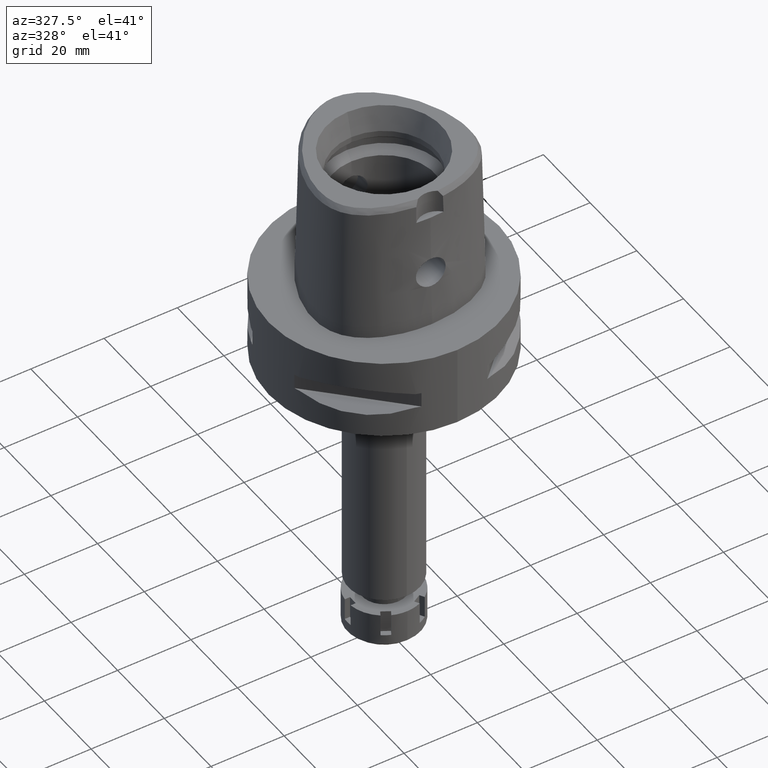
[diagram: clean part render]
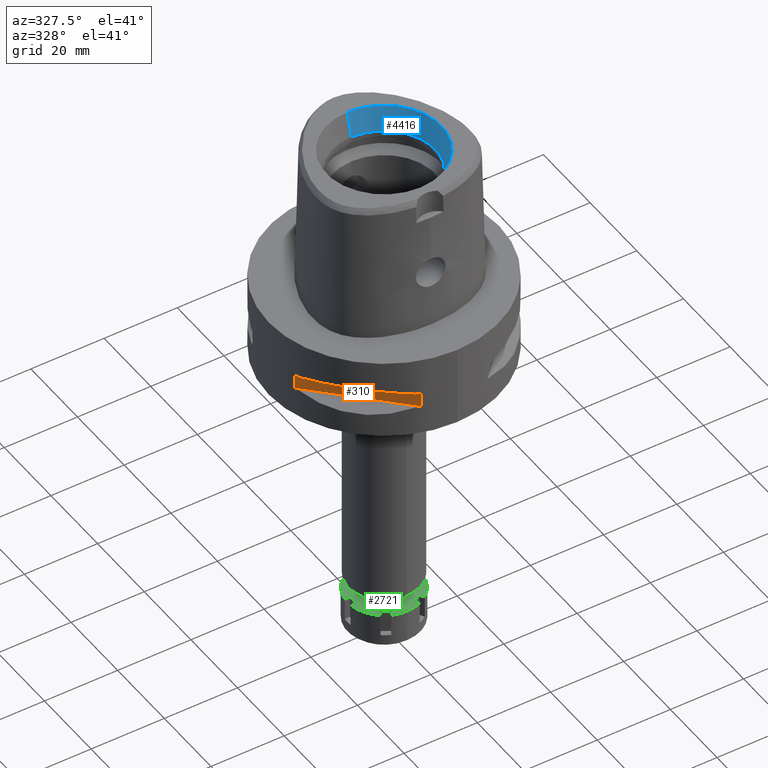
[diagram: same view with three faces highlighted in distinct colors, each labeled with its STEP entity id]
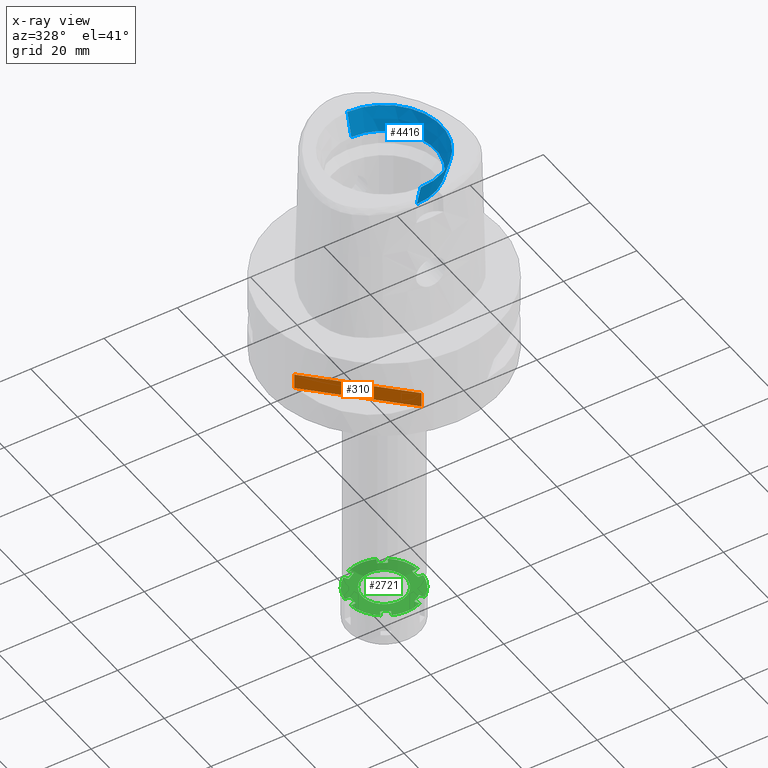
[diagram: x-ray of the same camera — body ghosted, the three highlighted faces saturated]
A machine part, auxiliary view with three faces highlighted in distinct colors.
The next image is the same camera in x-ray (body ghosted, the three faces saturated) — at least one of them is partly hidden behind the body in this view.
Their STEP definitions:

[orange] entity #310 — the highlighted planar face has unit normal (0.7071, 0.7071, 0).
#164 = ORIENTED_EDGE ( 'NONE', *, *, #5255, .T. ) ;
#310 = ADVANCED_FACE ( 'NONE', ( #4276 ), #2108, .F. ) ;
#367 = VECTOR ( 'NONE', #5189, 1000.000000000000000 ) ;
#461 = CARTESIAN_POINT ( 'NONE',  ( -30.19251670572000279, -8.981198972017999438, -9.950000000000001066 ) ) ;
#512 = CARTESIAN_POINT ( 'NONE',  ( -8.981198972017999438, -30.19251670572000279, -9.950000000000001066 ) ) ;
#1160 = ORIENTED_EDGE ( 'NONE', *, *, #2821, .F. ) ;
#1333 = EDGE_CURVE ( 'NONE', #5198, #2493, #1384, .T. ) ;
#1384 = LINE ( 'NONE', #461, #1723 ) ;
#1506 = LINE ( 'NONE', #1817, #2937 ) ;
#1684 = CARTESIAN_POINT ( 'NONE',  ( -5.444722215136000187, -33.72899346260000186, -9.950000000000001066 ) ) ;
#1723 = VECTOR ( 'NONE', #2630, 1000.000000000000000 ) ;
#1784 = ORIENTED_EDGE ( 'NONE', *, *, #1333, .T. ) ;
#1817 = CARTESIAN_POINT ( 'NONE',  ( -30.19251670572000279, -8.981198972017999438, -9.950000000000001066 ) ) ;
#1979 = DIRECTION ( 'NONE',  ( 0.7071067811865474617, -0.7071067811865474617, 0.0000000000000000000 ) ) ;
#2048 = CARTESIAN_POINT ( 'NONE',  ( -8.981198972019999616, -30.19251670572000279, -14.05000000000000071 ) ) ;
#2108 = PLANE ( 'NONE',  #5203 ) ;
#2142 = CARTESIAN_POINT ( 'NONE',  ( -30.19251670572000279, -8.981198972017999438, -14.05000000000000071 ) ) ;
#2493 = VERTEX_POINT ( 'NONE', #2142 ) ;
#2630 = DIRECTION ( 'NONE',  ( 0.0000000000000000000, 0.0000000000000000000, -1.000000000000000000 ) ) ;
#2682 = LINE ( 'NONE', #3462, #367 ) ;
#2821 = EDGE_CURVE ( 'NONE', #5198, #3656, #1506, .T. ) ;
#2893 = CARTESIAN_POINT ( 'NONE',  ( -30.19251670572000279, -8.981198972017999438, -14.05000000000000071 ) ) ;
#2937 = VECTOR ( 'NONE', #4123, 1000.000000000000114 ) ;
#3135 = EDGE_CURVE ( 'NONE', #2493, #4023, #4237, .T. ) ;
#3462 = CARTESIAN_POINT ( 'NONE',  ( -8.981198972017999438, -30.19251670572000279, -14.05000000000000071 ) ) ;
#3656 = VERTEX_POINT ( 'NONE', #512 ) ;
#3849 = DIRECTION ( 'NONE',  ( 0.0000000000000000000, 0.0000000000000000000, -1.000000000000000000 ) ) ;
#3898 = EDGE_LOOP ( 'NONE', ( #1160, #1784, #3915, #164 ) ) ;
#3914 = CARTESIAN_POINT ( 'NONE',  ( -30.19251670572000279, -8.981198972019999616, -9.950000000000001066 ) ) ;
#3915 = ORIENTED_EDGE ( 'NONE', *, *, #3135, .T. ) ;
#4023 = VERTEX_POINT ( 'NONE', #2048 ) ;
#4123 = DIRECTION ( 'NONE',  ( 0.7071067811865474617, -0.7071067811865474617, 0.0000000000000000000 ) ) ;
#4237 = LINE ( 'NONE', #2893, #5097 ) ;
#4276 = FACE_OUTER_BOUND ( 'NONE', #3898, .T. ) ;
#4732 = DIRECTION ( 'NONE',  ( 0.7071067811865475727, 0.7071067811865475727, 0.0000000000000000000 ) ) ;
#5097 = VECTOR ( 'NONE', #1979, 1000.000000000000114 ) ;
#5189 = DIRECTION ( 'NONE',  ( 0.0000000000000000000, 0.0000000000000000000, 1.000000000000000000 ) ) ;
#5198 = VERTEX_POINT ( 'NONE', #3914 ) ;
#5203 = AXIS2_PLACEMENT_3D ( 'NONE', #1684, #4732, #3849 ) ;
#5255 = EDGE_CURVE ( 'NONE', #4023, #3656, #2682, .T. ) ;

[blue] entity #4416 — the highlighted conical surface has half-angle 15 deg.
#2 = CARTESIAN_POINT ( 'NONE',  ( 0.0000000000000000000, 0.0000000000000000000, 34.79999999999999716 ) ) ;
#49 = DIRECTION ( 'NONE',  ( 0.0000000000000000000, -1.000000000000000000, 0.0000000000000000000 ) ) ;
#53 = DIRECTION ( 'NONE',  ( 0.0000000000000000000, 0.0000000000000000000, 1.000000000000000000 ) ) ;
#233 = VERTEX_POINT ( 'NONE', #4762 ) ;
#298 = CARTESIAN_POINT ( 'NONE',  ( 0.0000000000000000000, 14.00000000000000000, 31.60000000000000142 ) ) ;
#300 = VERTEX_POINT ( 'NONE', #1292 ) ;
#468 = ORIENTED_EDGE ( 'NONE', *, *, #1913, .T. ) ;
#777 = EDGE_LOOP ( 'NONE', ( #2359, #4231, #468, #4911 ) ) ;
#866 = CARTESIAN_POINT ( 'NONE',  ( 0.0000000000000000000, 0.0000000000000000000, 31.60000000000000142 ) ) ;
#976 = DIRECTION ( 'NONE',  ( 0.0000000000000000000, 0.0000000000000000000, 1.000000000000000000 ) ) ;
#1066 = CIRCLE ( 'NONE', #3585, 14.00000000000000000 ) ;
#1236 = FACE_OUTER_BOUND ( 'NONE', #777, .T. ) ;
#1292 = CARTESIAN_POINT ( 'NONE',  ( 0.0000000000000000000, -14.00000000000000000, 31.60000000000000142 ) ) ;
#1471 = EDGE_CURVE ( 'NONE', #4444, #233, #2758, .T. ) ;
#1913 = EDGE_CURVE ( 'NONE', #300, #4444, #3620, .T. ) ;
#2162 = EDGE_CURVE ( 'NONE', #3417, #233, #2925, .T. ) ;
#2230 = CARTESIAN_POINT ( 'NONE',  ( 0.0000000000000000000, 14.00000000000000000, 31.60000000000000142 ) ) ;
#2327 = CONICAL_SURFACE ( 'NONE', #4673, 14.85743741577999977, 0.2617993877991000029 ) ;
#2359 = ORIENTED_EDGE ( 'NONE', *, *, #2162, .F. ) ;
#2384 = DIRECTION ( 'NONE',  ( 0.0000000000000000000, -0.2588190451025869088, 0.9659258262890505486 ) ) ;
#2756 = CARTESIAN_POINT ( 'NONE',  ( 0.0000000000000000000, -14.00000000000000000, 31.60000000000000142 ) ) ;
#2758 = CIRCLE ( 'NONE', #3736, 15.71487483155999776 ) ;
#2925 = LINE ( 'NONE', #298, #4553 ) ;
#3072 = CARTESIAN_POINT ( 'NONE',  ( 0.0000000000000000000, -15.71487483155999776, 38.00000000000000000 ) ) ;
#3106 = DIRECTION ( 'NONE',  ( 0.0000000000000000000, 0.0000000000000000000, 1.000000000000000000 ) ) ;
#3372 = DIRECTION ( 'NONE',  ( 0.0000000000000000000, 0.2588190451025869088, 0.9659258262890505486 ) ) ;
#3417 = VERTEX_POINT ( 'NONE', #2230 ) ;
#3499 = CARTESIAN_POINT ( 'NONE',  ( 0.0000000000000000000, 0.0000000000000000000, 38.00000000000000000 ) ) ;
#3585 = AXIS2_PLACEMENT_3D ( 'NONE', #866, #976, #49 ) ;
#3620 = LINE ( 'NONE', #2756, #4010 ) ;
#3736 = AXIS2_PLACEMENT_3D ( 'NONE', #3499, #3106, #4822 ) ;
#4010 = VECTOR ( 'NONE', #2384, 1000.000000000000000 ) ;
#4231 = ORIENTED_EDGE ( 'NONE', *, *, #4572, .F. ) ;
#4416 = ADVANCED_FACE ( 'NONE', ( #1236 ), #2327, .F. ) ;
#4444 = VERTEX_POINT ( 'NONE', #3072 ) ;
#4553 = VECTOR ( 'NONE', #3372, 1000.000000000000000 ) ;
#4572 = EDGE_CURVE ( 'NONE', #300, #3417, #1066, .T. ) ;
#4673 = AXIS2_PLACEMENT_3D ( 'NONE', #2, #53, #5181 ) ;
#4762 = CARTESIAN_POINT ( 'NONE',  ( 0.0000000000000000000, 15.71487483155999776, 38.00000000000000000 ) ) ;
#4822 = DIRECTION ( 'NONE',  ( 0.0000000000000000000, -1.000000000000000000, 0.0000000000000000000 ) ) ;
#4911 = ORIENTED_EDGE ( 'NONE', *, *, #1471, .T. ) ;
#5181 = DIRECTION ( 'NONE',  ( 0.0000000000000000000, 1.000000000000000000, 0.0000000000000000000 ) ) ;

[green] entity #2721 — the highlighted planar face has unit normal (0, 0, -1).
#13 = LINE ( 'NONE', #3441, #3562 ) ;
#30 = DIRECTION ( 'NONE',  ( 0.0000000000000000000, 0.0000000000000000000, -1.000000000000000000 ) ) ;
#43 = CARTESIAN_POINT ( 'NONE',  ( 0.0000000000000000000, 0.0000000000000000000, 0.0000000000000000000 ) ) ;
#91 = DIRECTION ( 'NONE',  ( 0.0000000000000000000, 0.0000000000000000000, -1.000000000000000000 ) ) ;
#96 = CIRCLE ( 'NONE', #1700, 9.999999999999998224 ) ;
#99 = CARTESIAN_POINT ( 'NONE',  ( 3.878251953516000050, 9.217329428041999506, 0.0000000000000000000 ) ) ;
#116 = CARTESIAN_POINT ( 'NONE',  ( -8.500000000000000000, 1.250000000000000000, 0.0000000000000000000 ) ) ;
#123 = DIRECTION ( 'NONE',  ( 0.6043315462976971419, 0.7967329428041960426, 0.0000000000000000000 ) ) ;
#127 = ORIENTED_EDGE ( 'NONE', *, *, #3199, .F. ) ;
#167 = DIRECTION ( 'NONE',  ( 0.0000000000000000000, -1.000000000000000000, 0.0000000000000000000 ) ) ;
#201 = EDGE_CURVE ( 'NONE', #3944, #384, #622, .T. ) ;
#202 = CARTESIAN_POINT ( 'NONE',  ( 6.043315462977000507, 7.967329428041999506, 0.0000000000000000000 ) ) ;
#264 = DIRECTION ( 'NONE',  ( -0.6043315462976971419, -0.7967329428041960426, 0.0000000000000000000 ) ) ;
#294 = LINE ( 'NONE', #4152, #506 ) ;
#308 = DIRECTION ( 'NONE',  ( 0.0000000000000000000, 1.000000000000000000, 0.0000000000000000000 ) ) ;
#341 = EDGE_CURVE ( 'NONE', #1026, #4500, #2623, .T. ) ;
#352 = EDGE_CURVE ( 'NONE', #946, #4629, #481, .T. ) ;
#370 = DIRECTION ( 'NONE',  ( -0.8660254037844536956, -0.4999999999999738542, 0.0000000000000000000 ) ) ;
#384 = VERTEX_POINT ( 'NONE', #4791 ) ;
#471 = DIRECTION ( 'NONE',  ( -0.5000000000002097211, 0.8660254037843175823, 0.0000000000000000000 ) ) ;
#477 = LINE ( 'NONE', #1264, #4213 ) ;
#481 = LINE ( 'NONE', #3521, #1539 ) ;
#502 = EDGE_CURVE ( 'NONE', #384, #3944, #735, .T. ) ;
#506 = VECTOR ( 'NONE', #1140, 1000.000000000000000 ) ;
#515 = ORIENTED_EDGE ( 'NONE', *, *, #4360, .F. ) ;
#538 = VECTOR ( 'NONE', #2600, 1000.000000000000000 ) ;
#556 = DIRECTION ( 'NONE',  ( 0.0000000000000000000, 0.0000000000000000000, -1.000000000000000000 ) ) ;
#599 = VECTOR ( 'NONE', #3200, 1000.000000000000227 ) ;
#616 = CARTESIAN_POINT ( 'NONE',  ( -9.921567416491999580, 1.250000000000000000, 0.0000000000000000000 ) ) ;
#622 = CIRCLE ( 'NONE', #808, 6.000000000000000000 ) ;
#638 = CARTESIAN_POINT ( 'NONE',  ( 0.0000000000000000000, 0.0000000000000000000, 0.0000000000000000000 ) ) ;
#665 = DIRECTION ( 'NONE',  ( 0.0000000000000000000, 0.0000000000000000000, -1.000000000000000000 ) ) ;
#735 = CIRCLE ( 'NONE', #2624, 6.000000000000000000 ) ;
#792 = CARTESIAN_POINT ( 'NONE',  ( 8.500000000000000000, -1.250000000000000000, 0.0000000000000000000 ) ) ;
#808 = AXIS2_PLACEMENT_3D ( 'NONE', #3101, #826, #2193 ) ;
#826 = DIRECTION ( 'NONE',  ( 0.0000000000000000000, 0.0000000000000000000, 1.000000000000000000 ) ) ;
#834 = CARTESIAN_POINT ( 'NONE',  ( -5.332531754731000717, 6.736215932168000187, 0.0000000000000000000 ) ) ;
#842 = EDGE_CURVE ( 'NONE', #5509, #4611, #2539, .T. ) ;
#860 = CARTESIAN_POINT ( 'NONE',  ( -3.878251953514999961, 9.217329428041999506, 0.0000000000000000000 ) ) ;
#932 = DIRECTION ( 'NONE',  ( -1.000000000000000000, 0.0000000000000000000, 0.0000000000000000000 ) ) ;
#939 = CARTESIAN_POINT ( 'NONE',  ( 0.0000000000000000000, 0.0000000000000000000, 0.0000000000000000000 ) ) ;
#942 = DIRECTION ( 'NONE',  ( 0.3878251953515154948, -0.9217329428042371209, 0.0000000000000000000 ) ) ;
#946 = VERTEX_POINT ( 'NONE', #5496 ) ;
#963 = ORIENTED_EDGE ( 'NONE', *, *, #1234, .F. ) ;
#1006 = AXIS2_PLACEMENT_3D ( 'NONE', #1503, #665, #264 ) ;
#1026 = VERTEX_POINT ( 'NONE', #1095 ) ;
#1035 = VERTEX_POINT ( 'NONE', #1571 ) ;
#1054 = CARTESIAN_POINT ( 'NONE',  ( 5.332531754731000717, 6.736215932168000187, 0.0000000000000000000 ) ) ;
#1095 = CARTESIAN_POINT ( 'NONE',  ( 9.921567416491999580, -1.250000000000000000, 0.0000000000000000000 ) ) ;
#1104 = CARTESIAN_POINT ( 'NONE',  ( -3.878251953516000050, -9.217329428041999506, 0.0000000000000000000 ) ) ;
#1119 = ORIENTED_EDGE ( 'NONE', *, *, #3308, .F. ) ;
#1140 = DIRECTION ( 'NONE',  ( -0.8660254037844536956, 0.4999999999999738542, 0.0000000000000000000 ) ) ;
#1148 = VERTEX_POINT ( 'NONE', #3806 ) ;
#1162 = ORIENTED_EDGE ( 'NONE', *, *, #2563, .T. ) ;
#1167 = ORIENTED_EDGE ( 'NONE', *, *, #5295, .T. ) ;
#1234 = EDGE_CURVE ( 'NONE', #3534, #2703, #2459, .T. ) ;
#1263 = CARTESIAN_POINT ( 'NONE',  ( 0.0000000000000000000, 0.0000000000000000000, 0.0000000000000000000 ) ) ;
#1264 = CARTESIAN_POINT ( 'NONE',  ( 5.332531754731000717, -6.736215932168000187, 0.0000000000000000000 ) ) ;
#1312 = CARTESIAN_POINT ( 'NONE',  ( -6.043315462977000507, 7.967329428041999506, 0.0000000000000000000 ) ) ;
#1319 = AXIS2_PLACEMENT_3D ( 'NONE', #638, #556, #4517 ) ;
#1337 = ORIENTED_EDGE ( 'NONE', *, *, #2243, .F. ) ;
#1344 = CARTESIAN_POINT ( 'NONE',  ( 3.878251953514999961, -9.217329428041999506, 0.0000000000000000000 ) ) ;
#1372 = EDGE_CURVE ( 'NONE', #1026, #946, #3168, .T. ) ;
#1408 = ORIENTED_EDGE ( 'NONE', *, *, #352, .F. ) ;
#1419 = ORIENTED_EDGE ( 'NONE', *, *, #3544, .F. ) ;
#1485 = VECTOR ( 'NONE', #2867, 1000.000000000000000 ) ;
#1501 = LINE ( 'NONE', #5312, #2855 ) ;
#1503 = CARTESIAN_POINT ( 'NONE',  ( 0.0000000000000000000, 0.0000000000000000000, 0.0000000000000000000 ) ) ;
#1513 = CIRCLE ( 'NONE', #3671, 10.00000000000000000 ) ;
#1515 = AXIS2_PLACEMENT_3D ( 'NONE', #1766, #3906, #2080 ) ;
#1524 = CARTESIAN_POINT ( 'NONE',  ( 5.332531754731000717, 6.736215932168000187, 0.0000000000000000000 ) ) ;
#1539 = VECTOR ( 'NONE', #4361, 1000.000000000000114 ) ;
#1542 = EDGE_CURVE ( 'NONE', #4655, #3534, #13, .T. ) ;
#1571 = CARTESIAN_POINT ( 'NONE',  ( 3.167468245269000171, -7.986215932168000187, 0.0000000000000000000 ) ) ;
#1700 = AXIS2_PLACEMENT_3D ( 'NONE', #3952, #3979, #123 ) ;
#1726 = CARTESIAN_POINT ( 'NONE',  ( -5.332531754731000717, 6.736215932168000187, 0.0000000000000000000 ) ) ;
#1734 = CARTESIAN_POINT ( 'NONE',  ( -9.921567416491999580, -1.250000000000000000, 0.0000000000000000000 ) ) ;
#1761 = LINE ( 'NONE', #3483, #2787 ) ;
#1765 = PLANE ( 'NONE',  #5007 ) ;
#1766 = CARTESIAN_POINT ( 'NONE',  ( 0.0000000000000000000, 0.0000000000000000000, 0.0000000000000000000 ) ) ;
#1783 = CIRCLE ( 'NONE', #1515, 10.00000000000000000 ) ;
#1795 = CARTESIAN_POINT ( 'NONE',  ( 3.167468245269000171, -7.986215932168000187, 0.0000000000000000000 ) ) ;
#1867 = VECTOR ( 'NONE', #4293, 1000.000000000000227 ) ;
#1871 = ORIENTED_EDGE ( 'NONE', *, *, #5549, .F. ) ;
#1932 = CARTESIAN_POINT ( 'NONE',  ( 0.0000000000000000000, 0.0000000000000000000, 0.0000000000000000000 ) ) ;
#1947 = VERTEX_POINT ( 'NONE', #616 ) ;
#1955 = LINE ( 'NONE', #2270, #599 ) ;
#1984 = EDGE_CURVE ( 'NONE', #3497, #3158, #1955, .T. ) ;
#2002 = VERTEX_POINT ( 'NONE', #4921 ) ;
#2034 = VECTOR ( 'NONE', #5165, 1000.000000000000114 ) ;
#2045 = ORIENTED_EDGE ( 'NONE', *, *, #341, .T. ) ;
#2080 = DIRECTION ( 'NONE',  ( 0.0000000000000000000, -1.000000000000000000, 0.0000000000000000000 ) ) ;
#2124 = VECTOR ( 'NONE', #2128, 1000.000000000000000 ) ;
#2128 = DIRECTION ( 'NONE',  ( 1.000000000000000000, 0.0000000000000000000, 0.0000000000000000000 ) ) ;
#2145 = ORIENTED_EDGE ( 'NONE', *, *, #4680, .T. ) ;
#2166 = CARTESIAN_POINT ( 'NONE',  ( 9.921567416491999580, -1.250000000000000000, 0.0000000000000000000 ) ) ;
#2174 = CARTESIAN_POINT ( 'NONE',  ( -5.332531754731000717, -6.736215932168000187, 0.0000000000000000000 ) ) ;
#2193 = DIRECTION ( 'NONE',  ( 0.0000000000000000000, 1.000000000000000000, 0.0000000000000000000 ) ) ;
#2239 = LINE ( 'NONE', #5148, #1867 ) ;
#2243 = EDGE_CURVE ( 'NONE', #3529, #2002, #5008, .T. ) ;
#2253 = CARTESIAN_POINT ( 'NONE',  ( 0.0000000000000000000, 6.000000000000000000, 0.0000000000000000000 ) ) ;
#2270 = CARTESIAN_POINT ( 'NONE',  ( 3.878251953516000050, 9.217329428041999506, 0.0000000000000000000 ) ) ;
#2299 = ORIENTED_EDGE ( 'NONE', *, *, #4552, .F. ) ;
#2310 = EDGE_CURVE ( 'NONE', #5212, #4080, #1501, .T. ) ;
#2323 = AXIS2_PLACEMENT_3D ( 'NONE', #4220, #3457, #4249 ) ;
#2332 = ORIENTED_EDGE ( 'NONE', *, *, #3904, .F. ) ;
#2349 = VERTEX_POINT ( 'NONE', #3805 ) ;
#2413 = ORIENTED_EDGE ( 'NONE', *, *, #201, .F. ) ;
#2448 = CARTESIAN_POINT ( 'NONE',  ( -8.500000000000000000, 1.250000000000000000, 0.0000000000000000000 ) ) ;
#2459 = LINE ( 'NONE', #834, #3698 ) ;
#2470 = EDGE_LOOP ( 'NONE', ( #2332, #1337, #2299, #963, #3635, #5430, #1162, #1167, #2145, #3897, #3276, #4796, #3637, #5038, #1119, #1871, #515, #1408, #3721, #2045, #2732, #4807, #4554, #1419, #127, #4573 ) ) ;
#2479 = AXIS2_PLACEMENT_3D ( 'NONE', #43, #3837, #942 ) ;
#2505 = VECTOR ( 'NONE', #932, 1000.000000000000000 ) ;
#2524 = EDGE_CURVE ( 'NONE', #1148, #5509, #4797, .T. ) ;
#2533 = VECTOR ( 'NONE', #3073, 1000.000000000000227 ) ;
#2539 = CIRCLE ( 'NONE', #1006, 9.999999999999998224 ) ;
#2563 = EDGE_CURVE ( 'NONE', #1947, #4007, #5260, .T. ) ;
#2600 = DIRECTION ( 'NONE',  ( 0.0000000000000000000, -1.000000000000000000, 0.0000000000000000000 ) ) ;
#2623 = LINE ( 'NONE', #2166, #2505 ) ;
#2624 = AXIS2_PLACEMENT_3D ( 'NONE', #1932, #4076, #167 ) ;
#2646 = DIRECTION ( 'NONE',  ( 0.0000000000000000000, -1.000000000000000000, 0.0000000000000000000 ) ) ;
#2657 = DIRECTION ( 'NONE',  ( 0.9921567416492210745, -0.1250000000000026090, 0.0000000000000000000 ) ) ;
#2696 = LINE ( 'NONE', #4722, #4302 ) ;
#2703 = VERTEX_POINT ( 'NONE', #5124 ) ;
#2721 = ADVANCED_FACE ( 'NONE', ( #3875, #5100 ), #1765, .F. ) ;
#2732 = ORIENTED_EDGE ( 'NONE', *, *, #5467, .T. ) ;
#2787 = VECTOR ( 'NONE', #471, 1000.000000000000227 ) ;
#2807 = ORIENTED_EDGE ( 'NONE', *, *, #502, .F. ) ;
#2855 = VECTOR ( 'NONE', #4941, 1000.000000000000000 ) ;
#2859 = CARTESIAN_POINT ( 'NONE',  ( 0.0000000000000000000, -10.00000000000000000, 0.0000000000000000000 ) ) ;
#2867 = DIRECTION ( 'NONE',  ( 0.8660254037844536956, -0.4999999999999738542, 0.0000000000000000000 ) ) ;
#2891 = EDGE_LOOP ( 'NONE', ( #2413, #2807 ) ) ;
#3023 = VERTEX_POINT ( 'NONE', #1054 ) ;
#3037 = EDGE_CURVE ( 'NONE', #4909, #1148, #294, .T. ) ;
#3038 = DIRECTION ( 'NONE',  ( -1.000000000000000000, 0.0000000000000000000, 0.0000000000000000000 ) ) ;
#3053 = DIRECTION ( 'NONE',  ( 0.0000000000000000000, 0.0000000000000000000, -1.000000000000000000 ) ) ;
#3073 = DIRECTION ( 'NONE',  ( 0.5000000000002097211, -0.8660254037843175823, 0.0000000000000000000 ) ) ;
#3101 = CARTESIAN_POINT ( 'NONE',  ( 0.0000000000000000000, 0.0000000000000000000, 0.0000000000000000000 ) ) ;
#3156 = DIRECTION ( 'NONE',  ( 0.0000000000000000000, 1.000000000000000000, 0.0000000000000000000 ) ) ;
#3158 = VERTEX_POINT ( 'NONE', #3728 ) ;
#3168 = CIRCLE ( 'NONE', #4870, 9.999999999999998224 ) ;
#3199 = EDGE_CURVE ( 'NONE', #3158, #3023, #5089, .T. ) ;
#3200 = DIRECTION ( 'NONE',  ( -0.5000000000002097211, -0.8660254037843175823, 0.0000000000000000000 ) ) ;
#3276 = ORIENTED_EDGE ( 'NONE', *, *, #2524, .F. ) ;
#3293 = CARTESIAN_POINT ( 'NONE',  ( 9.921567416491999580, 1.250000000000000000, 0.0000000000000000000 ) ) ;
#3308 = EDGE_CURVE ( 'NONE', #4626, #5069, #3382, .T. ) ;
#3311 = CARTESIAN_POINT ( 'NONE',  ( 3.167468245270000260, 7.986215932168000187, 0.0000000000000000000 ) ) ;
#3365 = DIRECTION ( 'NONE',  ( 0.8660254037844536956, 0.4999999999999738542, 0.0000000000000000000 ) ) ;
#3382 = CIRCLE ( 'NONE', #2479, 10.00000000000000000 ) ;
#3441 = CARTESIAN_POINT ( 'NONE',  ( -6.043315462977000507, 7.967329428041999506, 0.0000000000000000000 ) ) ;
#3457 = DIRECTION ( 'NONE',  ( 0.0000000000000000000, 0.0000000000000000000, -1.000000000000000000 ) ) ;
#3483 = CARTESIAN_POINT ( 'NONE',  ( -3.167468245269000171, 7.986215932168000187, 0.0000000000000000000 ) ) ;
#3497 = VERTEX_POINT ( 'NONE', #99 ) ;
#3502 = LINE ( 'NONE', #1524, #4460 ) ;
#3521 = CARTESIAN_POINT ( 'NONE',  ( 6.043315462977000507, -7.967329428041999506, 0.0000000000000000000 ) ) ;
#3525 = CARTESIAN_POINT ( 'NONE',  ( 8.500000000000000000, 1.250000000000000000, 0.0000000000000000000 ) ) ;
#3529 = VERTEX_POINT ( 'NONE', #860 ) ;
#3534 = VERTEX_POINT ( 'NONE', #1726 ) ;
#3544 = EDGE_CURVE ( 'NONE', #3023, #3558, #3502, .T. ) ;
#3558 = VERTEX_POINT ( 'NONE', #202 ) ;
#3562 = VECTOR ( 'NONE', #5166, 1000.000000000000114 ) ;
#3626 = CARTESIAN_POINT ( 'NONE',  ( 0.0000000000000000000, 0.0000000000000000000, 0.0000000000000000000 ) ) ;
#3635 = ORIENTED_EDGE ( 'NONE', *, *, #1542, .F. ) ;
#3637 = ORIENTED_EDGE ( 'NONE', *, *, #4610, .F. ) ;
#3671 = AXIS2_PLACEMENT_3D ( 'NONE', #3626, #91, #3156 ) ;
#3698 = VECTOR ( 'NONE', #3365, 1000.000000000000000 ) ;
#3721 = ORIENTED_EDGE ( 'NONE', *, *, #1372, .F. ) ;
#3728 = CARTESIAN_POINT ( 'NONE',  ( 3.167468245270000260, 7.986215932168000187, 0.0000000000000000000 ) ) ;
#3805 = CARTESIAN_POINT ( 'NONE',  ( -8.500000000000000000, -1.250000000000000000, 0.0000000000000000000 ) ) ;
#3806 = CARTESIAN_POINT ( 'NONE',  ( -5.332531754731000717, -6.736215932168000187, 0.0000000000000000000 ) ) ;
#3837 = DIRECTION ( 'NONE',  ( 0.0000000000000000000, 0.0000000000000000000, -1.000000000000000000 ) ) ;
#3875 = FACE_OUTER_BOUND ( 'NONE', #2470, .T. ) ;
#3897 = ORIENTED_EDGE ( 'NONE', *, *, #842, .F. ) ;
#3901 = CARTESIAN_POINT ( 'NONE',  ( 5.332531754731000717, -6.736215932168000187, 0.0000000000000000000 ) ) ;
#3904 = EDGE_CURVE ( 'NONE', #2002, #3497, #1513, .T. ) ;
#3906 = DIRECTION ( 'NONE',  ( 0.0000000000000000000, 0.0000000000000000000, -1.000000000000000000 ) ) ;
#3937 = LINE ( 'NONE', #1795, #2533 ) ;
#3944 = VERTEX_POINT ( 'NONE', #2253 ) ;
#3952 = CARTESIAN_POINT ( 'NONE',  ( 0.0000000000000000000, 0.0000000000000000000, 0.0000000000000000000 ) ) ;
#3979 = DIRECTION ( 'NONE',  ( 0.0000000000000000000, 0.0000000000000000000, -1.000000000000000000 ) ) ;
#3990 = CARTESIAN_POINT ( 'NONE',  ( 8.500000000000000000, -1.250000000000000000, 0.0000000000000000000 ) ) ;
#4007 = VERTEX_POINT ( 'NONE', #2448 ) ;
#4025 = CIRCLE ( 'NONE', #2323, 9.999999999999998224 ) ;
#4076 = DIRECTION ( 'NONE',  ( 0.0000000000000000000, 0.0000000000000000000, 1.000000000000000000 ) ) ;
#4080 = VERTEX_POINT ( 'NONE', #3293 ) ;
#4152 = CARTESIAN_POINT ( 'NONE',  ( -3.167468245270000260, -7.986215932168000187, 0.0000000000000000000 ) ) ;
#4166 = LINE ( 'NONE', #792, #5497 ) ;
#4213 = VECTOR ( 'NONE', #370, 1000.000000000000000 ) ;
#4220 = CARTESIAN_POINT ( 'NONE',  ( 0.0000000000000000000, 0.0000000000000000000, 0.0000000000000000000 ) ) ;
#4249 = DIRECTION ( 'NONE',  ( -0.9921567416492210745, 0.1250000000000026090, 0.0000000000000000000 ) ) ;
#4293 = DIRECTION ( 'NONE',  ( 0.5000000000002097211, 0.8660254037843175823, 0.0000000000000000000 ) ) ;
#4299 = EDGE_CURVE ( 'NONE', #1947, #4655, #4025, .T. ) ;
#4302 = VECTOR ( 'NONE', #3038, 1000.000000000000000 ) ;
#4360 = EDGE_CURVE ( 'NONE', #4629, #1035, #477, .T. ) ;
#4361 = DIRECTION ( 'NONE',  ( -0.5000000000000169864, 0.8660254037844288266, 0.0000000000000000000 ) ) ;
#4364 = EDGE_CURVE ( 'NONE', #5069, #5092, #1783, .T. ) ;
#4365 = LINE ( 'NONE', #116, #538 ) ;
#4460 = VECTOR ( 'NONE', #5276, 1000.000000000000114 ) ;
#4500 = VERTEX_POINT ( 'NONE', #3990 ) ;
#4517 = DIRECTION ( 'NONE',  ( -0.3878251953515154948, 0.9217329428042371209, 0.0000000000000000000 ) ) ;
#4552 = EDGE_CURVE ( 'NONE', #2703, #3529, #1761, .T. ) ;
#4554 = ORIENTED_EDGE ( 'NONE', *, *, #5045, .F. ) ;
#4573 = ORIENTED_EDGE ( 'NONE', *, *, #1984, .F. ) ;
#4610 = EDGE_CURVE ( 'NONE', #5092, #4909, #2239, .T. ) ;
#4611 = VERTEX_POINT ( 'NONE', #1734 ) ;
#4626 = VERTEX_POINT ( 'NONE', #1344 ) ;
#4629 = VERTEX_POINT ( 'NONE', #3901 ) ;
#4632 = CARTESIAN_POINT ( 'NONE',  ( -3.167468245270000260, -7.986215932168000187, 0.0000000000000000000 ) ) ;
#4655 = VERTEX_POINT ( 'NONE', #1312 ) ;
#4680 = EDGE_CURVE ( 'NONE', #2349, #4611, #2696, .T. ) ;
#4722 = CARTESIAN_POINT ( 'NONE',  ( -8.500000000000000000, -1.250000000000000000, 0.0000000000000000000 ) ) ;
#4729 = CARTESIAN_POINT ( 'NONE',  ( -6.043315462977000507, -7.967329428041999506, 0.0000000000000000000 ) ) ;
#4783 = CARTESIAN_POINT ( 'NONE',  ( -9.921567416491999580, 1.250000000000000000, 0.0000000000000000000 ) ) ;
#4791 = CARTESIAN_POINT ( 'NONE',  ( 0.0000000000000000000, -6.000000000000000000, 0.0000000000000000000 ) ) ;
#4796 = ORIENTED_EDGE ( 'NONE', *, *, #3037, .F. ) ;
#4797 = LINE ( 'NONE', #2174, #2034 ) ;
#4807 = ORIENTED_EDGE ( 'NONE', *, *, #2310, .T. ) ;
#4870 = AXIS2_PLACEMENT_3D ( 'NONE', #939, #3053, #2657 ) ;
#4909 = VERTEX_POINT ( 'NONE', #4632 ) ;
#4921 = CARTESIAN_POINT ( 'NONE',  ( 0.0000000000000000000, 10.00000000000000000, 0.0000000000000000000 ) ) ;
#4941 = DIRECTION ( 'NONE',  ( 1.000000000000000000, 0.0000000000000000000, 0.0000000000000000000 ) ) ;
#5007 = AXIS2_PLACEMENT_3D ( 'NONE', #1263, #30, #2646 ) ;
#5008 = CIRCLE ( 'NONE', #1319, 10.00000000000000000 ) ;
#5038 = ORIENTED_EDGE ( 'NONE', *, *, #4364, .F. ) ;
#5045 = EDGE_CURVE ( 'NONE', #3558, #4080, #96, .T. ) ;
#5069 = VERTEX_POINT ( 'NONE', #2859 ) ;
#5089 = LINE ( 'NONE', #3311, #1485 ) ;
#5092 = VERTEX_POINT ( 'NONE', #1104 ) ;
#5100 = FACE_BOUND ( 'NONE', #2891, .T. ) ;
#5124 = CARTESIAN_POINT ( 'NONE',  ( -3.167468245269000171, 7.986215932168000187, 0.0000000000000000000 ) ) ;
#5148 = CARTESIAN_POINT ( 'NONE',  ( -3.878251953516000050, -9.217329428041999506, 0.0000000000000000000 ) ) ;
#5165 = DIRECTION ( 'NONE',  ( -0.5000000000000169864, -0.8660254037844288266, 0.0000000000000000000 ) ) ;
#5166 = DIRECTION ( 'NONE',  ( 0.5000000000000169864, -0.8660254037844288266, 0.0000000000000000000 ) ) ;
#5212 = VERTEX_POINT ( 'NONE', #3525 ) ;
#5260 = LINE ( 'NONE', #4783, #2124 ) ;
#5276 = DIRECTION ( 'NONE',  ( 0.5000000000000169864, 0.8660254037844288266, 0.0000000000000000000 ) ) ;
#5295 = EDGE_CURVE ( 'NONE', #4007, #2349, #4365, .T. ) ;
#5312 = CARTESIAN_POINT ( 'NONE',  ( 8.500000000000000000, 1.250000000000000000, 0.0000000000000000000 ) ) ;
#5430 = ORIENTED_EDGE ( 'NONE', *, *, #4299, .F. ) ;
#5467 = EDGE_CURVE ( 'NONE', #4500, #5212, #4166, .T. ) ;
#5496 = CARTESIAN_POINT ( 'NONE',  ( 6.043315462977000507, -7.967329428041999506, 0.0000000000000000000 ) ) ;
#5497 = VECTOR ( 'NONE', #308, 1000.000000000000000 ) ;
#5509 = VERTEX_POINT ( 'NONE', #4729 ) ;
#5549 = EDGE_CURVE ( 'NONE', #1035, #4626, #3937, .T. ) ;